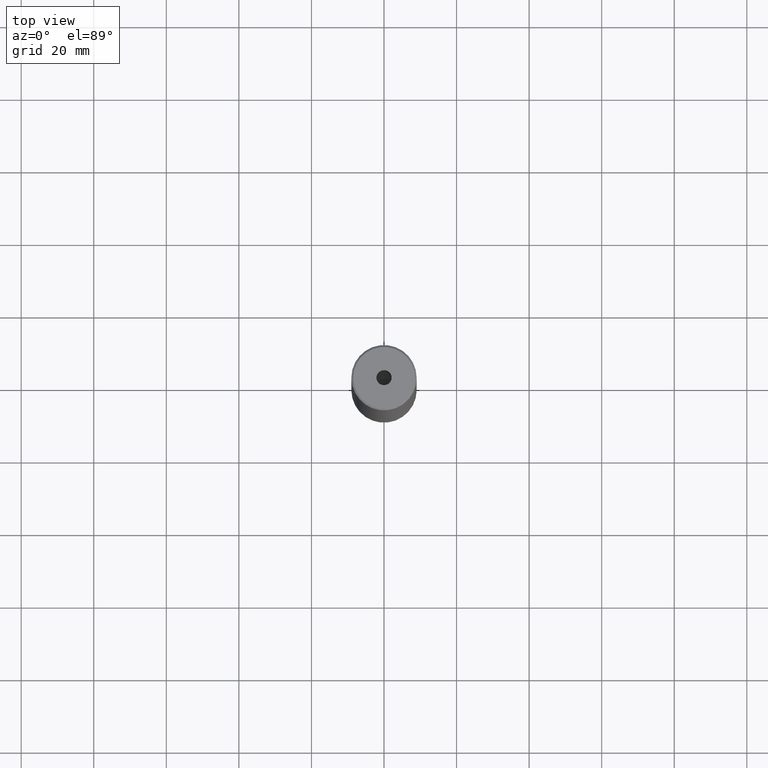
[diagram: clean part render]
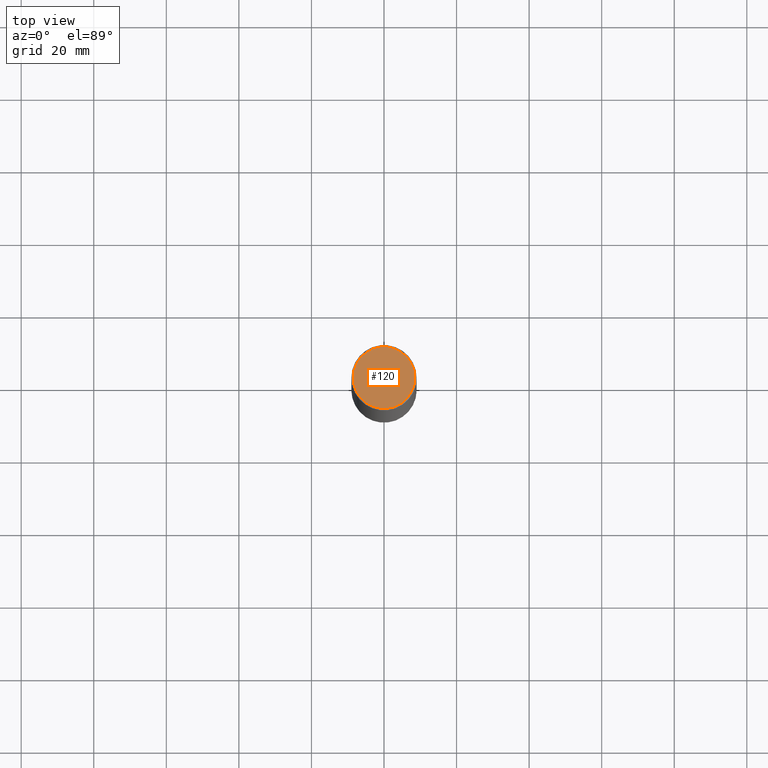
[diagram: same view with one face highlighted and labeled with its STEP entity id]
A machine part, top view. The second image highlights one B-rep face of the part: STEP entity #120.
In plain terms, the highlighted planar face has unit normal (0, -0, 1).
Its self-contained STEP definition (entity closure, byte-faithful):
#3 = CIRCLE ( 'NONE', #176, 8.500000000000007105 ) ;
#26 = DIRECTION ( 'NONE',  ( -0.000000000000000000, -0.000000000000000000, 1.000000000000000000 ) ) ;
#34 = CIRCLE ( 'NONE', #439, 8.500000000000007105 ) ;
#41 = EDGE_CURVE ( 'NONE', #285, #325, #260, .T. ) ;
#46 = EDGE_CURVE ( 'NONE', #472, #563, #3, .T. ) ;
#50 = CARTESIAN_POINT ( 'NONE',  ( -8.500000000000007105, 0.000000000000000000, 0.000000000000000000 ) ) ;
#69 = ORIENTED_EDGE ( 'NONE', *, *, #41, .F. ) ;
#108 = DIRECTION ( 'NONE',  ( 1.000000000000000000, 0.000000000000000000, 0.000000000000000000 ) ) ;
#116 = DIRECTION ( 'NONE',  ( 0.000000000000000000, -0.000000000000000000, 1.000000000000000000 ) ) ;
#120 = ADVANCED_FACE ( 'NONE', ( #506, #242 ), #423, .T. ) ;
#135 = CARTESIAN_POINT ( 'NONE',  ( 0.000000000000000000, 0.000000000000000000, -1.990051048614449116E-16 ) ) ;
#147 = CARTESIAN_POINT ( 'NONE',  ( 0.000000000000000000, 0.000000000000000000, -1.990051048614449116E-16 ) ) ;
#153 = EDGE_LOOP ( 'NONE', ( #450, #69 ) ) ;
#173 = EDGE_CURVE ( 'NONE', #563, #472, #34, .T. ) ;
#174 = DIRECTION ( 'NONE',  ( -0.000000000000000000, -0.000000000000000000, 1.000000000000000000 ) ) ;
#176 = AXIS2_PLACEMENT_3D ( 'NONE', #467, #520, #108 ) ;
#185 = AXIS2_PLACEMENT_3D ( 'NONE', #135, #174, #264 ) ;
#192 = DIRECTION ( 'NONE',  ( 1.000000000000000000, 0.000000000000000000, 0.000000000000000000 ) ) ;
#208 = CIRCLE ( 'NONE', #185, 2.099999999999998757 ) ;
#210 = CARTESIAN_POINT ( 'NONE',  ( 0.000000000000000000, 0.000000000000000000, 0.000000000000000000 ) ) ;
#223 = AXIS2_PLACEMENT_3D ( 'NONE', #147, #26, #192 ) ;
#242 = FACE_OUTER_BOUND ( 'NONE', #502, .T. ) ;
#260 = CIRCLE ( 'NONE', #223, 2.099999999999998757 ) ;
#264 = DIRECTION ( 'NONE',  ( 1.000000000000000000, 0.000000000000000000, 0.000000000000000000 ) ) ;
#270 = ORIENTED_EDGE ( 'NONE', *, *, #173, .T. ) ;
#285 = VERTEX_POINT ( 'NONE', #431 ) ;
#289 = DIRECTION ( 'NONE',  ( 1.000000000000000000, 0.000000000000000000, 0.000000000000000000 ) ) ;
#325 = VERTEX_POINT ( 'NONE', #396 ) ;
#335 = CARTESIAN_POINT ( 'NONE',  ( 8.500000000000007105, 1.071565949253934321E-15, 0.000000000000000000 ) ) ;
#336 = CARTESIAN_POINT ( 'NONE',  ( 0.000000000000000000, 0.000000000000000000, 0.000000000000000000 ) ) ;
#368 = ORIENTED_EDGE ( 'NONE', *, *, #46, .T. ) ;
#396 = CARTESIAN_POINT ( 'NONE',  ( 2.099999999999998757, 0.000000000000000000, -1.990051048614449116E-16 ) ) ;
#398 = DIRECTION ( 'NONE',  ( 1.000000000000000000, 0.000000000000000000, 0.000000000000000000 ) ) ;
#417 = EDGE_CURVE ( 'NONE', #325, #285, #208, .T. ) ;
#423 = PLANE ( 'NONE',  #536 ) ;
#431 = CARTESIAN_POINT ( 'NONE',  ( -2.099999999999998757, 2.571758278209440478E-16, -1.990051048614449116E-16 ) ) ;
#439 = AXIS2_PLACEMENT_3D ( 'NONE', #210, #482, #398 ) ;
#450 = ORIENTED_EDGE ( 'NONE', *, *, #417, .F. ) ;
#467 = CARTESIAN_POINT ( 'NONE',  ( 0.000000000000000000, 0.000000000000000000, 0.000000000000000000 ) ) ;
#472 = VERTEX_POINT ( 'NONE', #50 ) ;
#482 = DIRECTION ( 'NONE',  ( -0.000000000000000000, -0.000000000000000000, 1.000000000000000000 ) ) ;
#502 = EDGE_LOOP ( 'NONE', ( #368, #270 ) ) ;
#506 = FACE_BOUND ( 'NONE', #153, .T. ) ;
#520 = DIRECTION ( 'NONE',  ( -0.000000000000000000, -0.000000000000000000, 1.000000000000000000 ) ) ;
#536 = AXIS2_PLACEMENT_3D ( 'NONE', #336, #116, #289 ) ;
#563 = VERTEX_POINT ( 'NONE', #335 ) ;